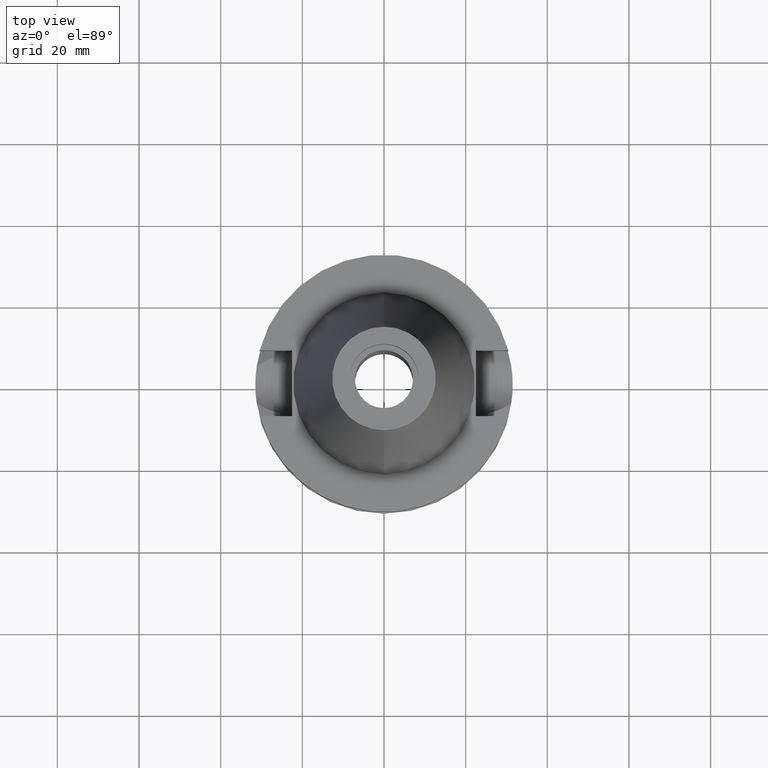
[diagram: clean part render]
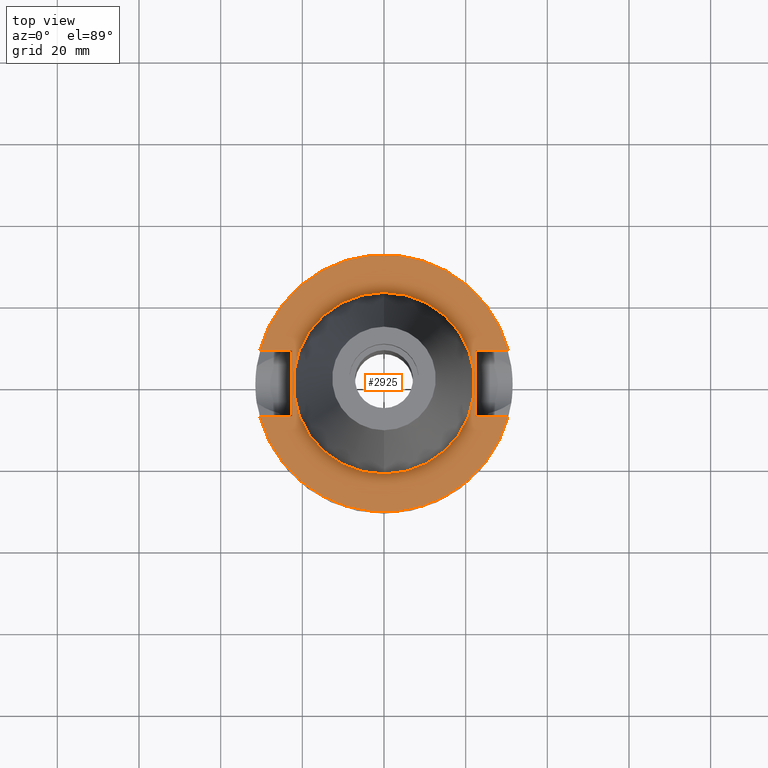
[diagram: same view with one face highlighted and labeled with its STEP entity id]
A machine part, top view. The second image highlights one B-rep face of the part: STEP entity #2925.
In plain terms, the highlighted planar face has unit normal (0, 0, -1).
Its self-contained STEP definition (entity closure, byte-faithful):
#37 = VECTOR ( 'NONE', #1730, 1000.000000000000000 ) ;
#79 = LINE ( 'NONE', #2454, #1138 ) ;
#123 = DIRECTION ( 'NONE',  ( 1.000000000000000000, 3.573249715389999860E-14, 0.0000000000000000000 ) ) ;
#196 = EDGE_CURVE ( 'NONE', #356, #3121, #1854, .T. ) ;
#218 = VERTEX_POINT ( 'NONE', #3345 ) ;
#221 = CIRCLE ( 'NONE', #2207, 31.50000000000000000 ) ;
#230 = FACE_OUTER_BOUND ( 'NONE', #2348, .T. ) ;
#248 = CARTESIAN_POINT ( 'NONE',  ( -22.50000000000000000, -8.050000000000000711, -2.000000000000000000 ) ) ;
#257 = ORIENTED_EDGE ( 'NONE', *, *, #1220, .F. ) ;
#313 = DIRECTION ( 'NONE',  ( 1.000000000000000000, -3.506251283225999947E-14, 0.0000000000000000000 ) ) ;
#348 = LINE ( 'NONE', #927, #1063 ) ;
#356 = VERTEX_POINT ( 'NONE', #1761 ) ;
#442 = DIRECTION ( 'NONE',  ( 0.0000000000000000000, -1.000000000000000000, 0.0000000000000000000 ) ) ;
#447 = CARTESIAN_POINT ( 'NONE',  ( 22.50000000000000000, -8.050000000000000711, -2.000000000000000000 ) ) ;
#475 = CARTESIAN_POINT ( 'NONE',  ( 0.0000000000000000000, 2.115822274886999895E-14, -2.000000000000000000 ) ) ;
#484 = DIRECTION ( 'NONE',  ( 0.0000000000000000000, -1.000000000000000000, 0.0000000000000000000 ) ) ;
#494 = PLANE ( 'NONE',  #3455 ) ;
#574 = EDGE_CURVE ( 'NONE', #218, #1396, #588, .T. ) ;
#588 = LINE ( 'NONE', #1664, #1308 ) ;
#656 = CARTESIAN_POINT ( 'NONE',  ( -22.50000000000000000, 8.050000000000000711, -2.000000000000000000 ) ) ;
#733 = FACE_BOUND ( 'NONE', #3015, .T. ) ;
#762 = CARTESIAN_POINT ( 'NONE',  ( -22.50000000000000000, -8.050000000000000711, -2.000000000000000000 ) ) ;
#770 = DIRECTION ( 'NONE',  ( 0.0000000000000000000, 0.0000000000000000000, 1.000000000000000000 ) ) ;
#927 = CARTESIAN_POINT ( 'NONE',  ( 22.50000000000000000, -8.050000000000000711, -2.000000000000000000 ) ) ;
#936 = CARTESIAN_POINT ( 'NONE',  ( -30.45402272279000044, 8.050000000000000711, -2.000000000000000000 ) ) ;
#987 = EDGE_CURVE ( 'NONE', #1315, #1957, #2110, .T. ) ;
#1002 = CIRCLE ( 'NONE', #1687, 31.50000000000000000 ) ;
#1004 = AXIS2_PLACEMENT_3D ( 'NONE', #2909, #770, #2326 ) ;
#1030 = VERTEX_POINT ( 'NONE', #1999 ) ;
#1040 = EDGE_CURVE ( 'NONE', #1315, #1030, #79, .T. ) ;
#1063 = VECTOR ( 'NONE', #123, 1000.000000000000000 ) ;
#1138 = VECTOR ( 'NONE', #1986, 1000.000000000000000 ) ;
#1164 = DIRECTION ( 'NONE',  ( 0.0000000000000000000, -1.000000000000000000, 0.0000000000000000000 ) ) ;
#1181 = DIRECTION ( 'NONE',  ( 0.0000000000000000000, 0.0000000000000000000, 1.000000000000000000 ) ) ;
#1209 = DIRECTION ( 'NONE',  ( 0.0000000000000000000, 0.0000000000000000000, -1.000000000000000000 ) ) ;
#1220 = EDGE_CURVE ( 'NONE', #218, #2836, #1264, .T. ) ;
#1264 = LINE ( 'NONE', #2608, #3298 ) ;
#1282 = ORIENTED_EDGE ( 'NONE', *, *, #2253, .F. ) ;
#1308 = VECTOR ( 'NONE', #313, 1000.000000000000000 ) ;
#1315 = VERTEX_POINT ( 'NONE', #762 ) ;
#1331 = DIRECTION ( 'NONE',  ( -1.000000000000000000, 3.550916904668000126E-14, 0.0000000000000000000 ) ) ;
#1396 = VERTEX_POINT ( 'NONE', #2410 ) ;
#1454 = CARTESIAN_POINT ( 'NONE',  ( 30.45402272279000044, -8.050000000000000711, -2.000000000000000000 ) ) ;
#1505 = ORIENTED_EDGE ( 'NONE', *, *, #987, .T. ) ;
#1553 = DIRECTION ( 'NONE',  ( 0.0000000000000000000, 0.0000000000000000000, -1.000000000000000000 ) ) ;
#1598 = CARTESIAN_POINT ( 'NONE',  ( 0.0000000000000000000, 22.22500000000000142, -2.000000000000000000 ) ) ;
#1615 = ORIENTED_EDGE ( 'NONE', *, *, #196, .F. ) ;
#1664 = CARTESIAN_POINT ( 'NONE',  ( 22.50000000000000000, 8.050000000000000711, -2.000000000000000000 ) ) ;
#1675 = EDGE_CURVE ( 'NONE', #1030, #3203, #2566, .T. ) ;
#1687 = AXIS2_PLACEMENT_3D ( 'NONE', #475, #1553, #2145 ) ;
#1689 = CIRCLE ( 'NONE', #1004, 22.22500000000000142 ) ;
#1730 = DIRECTION ( 'NONE',  ( -1.000000000000000000, -3.550916904668000126E-14, 0.0000000000000000000 ) ) ;
#1761 = CARTESIAN_POINT ( 'NONE',  ( 0.0000000000000000000, -22.22500000000000142, -2.000000000000000000 ) ) ;
#1854 = CIRCLE ( 'NONE', #1915, 22.22500000000000142 ) ;
#1915 = AXIS2_PLACEMENT_3D ( 'NONE', #3043, #1181, #1164 ) ;
#1932 = ORIENTED_EDGE ( 'NONE', *, *, #1675, .F. ) ;
#1957 = VERTEX_POINT ( 'NONE', #2750 ) ;
#1986 = DIRECTION ( 'NONE',  ( 0.0000000000000000000, 1.000000000000000000, 0.0000000000000000000 ) ) ;
#1999 = CARTESIAN_POINT ( 'NONE',  ( -22.50000000000000000, 8.050000000000000711, -2.000000000000000000 ) ) ;
#2067 = CARTESIAN_POINT ( 'NONE',  ( 0.0000000000000000000, 1.200153863163999924E-14, -2.000000000000000000 ) ) ;
#2110 = LINE ( 'NONE', #248, #2536 ) ;
#2145 = DIRECTION ( 'NONE',  ( 0.0000000000000000000, -1.000000000000000000, 0.0000000000000000000 ) ) ;
#2170 = ORIENTED_EDGE ( 'NONE', *, *, #2864, .F. ) ;
#2207 = AXIS2_PLACEMENT_3D ( 'NONE', #3115, #1209, #2281 ) ;
#2253 = EDGE_CURVE ( 'NONE', #3203, #1396, #221, .T. ) ;
#2281 = DIRECTION ( 'NONE',  ( 0.0000000000000000000, 1.000000000000000000, 0.0000000000000000000 ) ) ;
#2318 = ORIENTED_EDGE ( 'NONE', *, *, #1040, .F. ) ;
#2326 = DIRECTION ( 'NONE',  ( 0.0000000000000000000, 1.000000000000000000, 0.0000000000000000000 ) ) ;
#2348 = EDGE_LOOP ( 'NONE', ( #1505, #2958, #2432, #257, #3147, #1282, #1932, #2318 ) ) ;
#2356 = DIRECTION ( 'NONE',  ( 0.0000000000000000000, 0.0000000000000000000, -1.000000000000000000 ) ) ;
#2410 = CARTESIAN_POINT ( 'NONE',  ( 30.45402272279000044, 8.050000000000000711, -2.000000000000000000 ) ) ;
#2432 = ORIENTED_EDGE ( 'NONE', *, *, #2710, .F. ) ;
#2438 = EDGE_CURVE ( 'NONE', #3262, #1957, #1002, .T. ) ;
#2454 = CARTESIAN_POINT ( 'NONE',  ( -22.50000000000000000, -8.050000000000000711, -2.000000000000000000 ) ) ;
#2536 = VECTOR ( 'NONE', #1331, 1000.000000000000000 ) ;
#2566 = LINE ( 'NONE', #656, #37 ) ;
#2608 = CARTESIAN_POINT ( 'NONE',  ( 22.50000000000000000, 8.050000000000000711, -2.000000000000000000 ) ) ;
#2710 = EDGE_CURVE ( 'NONE', #2836, #3262, #348, .T. ) ;
#2750 = CARTESIAN_POINT ( 'NONE',  ( -30.45402272279000044, -8.050000000000000711, -2.000000000000000000 ) ) ;
#2836 = VERTEX_POINT ( 'NONE', #447 ) ;
#2864 = EDGE_CURVE ( 'NONE', #3121, #356, #1689, .T. ) ;
#2909 = CARTESIAN_POINT ( 'NONE',  ( 0.0000000000000000000, 2.115822274886999895E-14, -2.000000000000000000 ) ) ;
#2925 = ADVANCED_FACE ( 'NONE', ( #230, #733 ), #494, .F. ) ;
#2958 = ORIENTED_EDGE ( 'NONE', *, *, #2438, .F. ) ;
#3015 = EDGE_LOOP ( 'NONE', ( #2170, #1615 ) ) ;
#3043 = CARTESIAN_POINT ( 'NONE',  ( 0.0000000000000000000, 2.115822274886999895E-14, -2.000000000000000000 ) ) ;
#3115 = CARTESIAN_POINT ( 'NONE',  ( 0.0000000000000000000, 2.115822274886999895E-14, -2.000000000000000000 ) ) ;
#3121 = VERTEX_POINT ( 'NONE', #1598 ) ;
#3147 = ORIENTED_EDGE ( 'NONE', *, *, #574, .T. ) ;
#3203 = VERTEX_POINT ( 'NONE', #936 ) ;
#3262 = VERTEX_POINT ( 'NONE', #1454 ) ;
#3298 = VECTOR ( 'NONE', #442, 1000.000000000000000 ) ;
#3345 = CARTESIAN_POINT ( 'NONE',  ( 22.50000000000000000, 8.050000000000000711, -2.000000000000000000 ) ) ;
#3455 = AXIS2_PLACEMENT_3D ( 'NONE', #2067, #2356, #484 ) ;